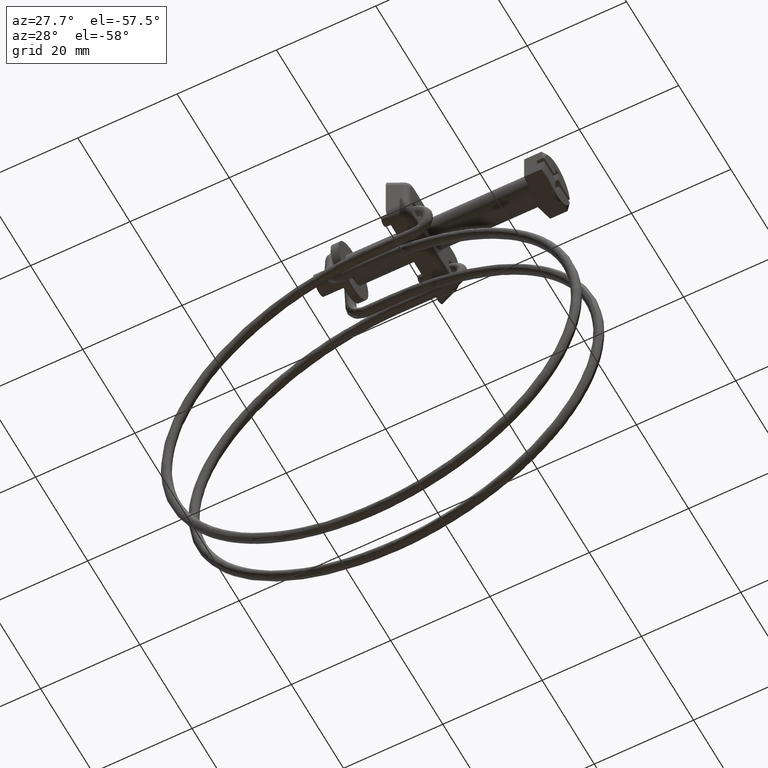
[diagram: clean part render]
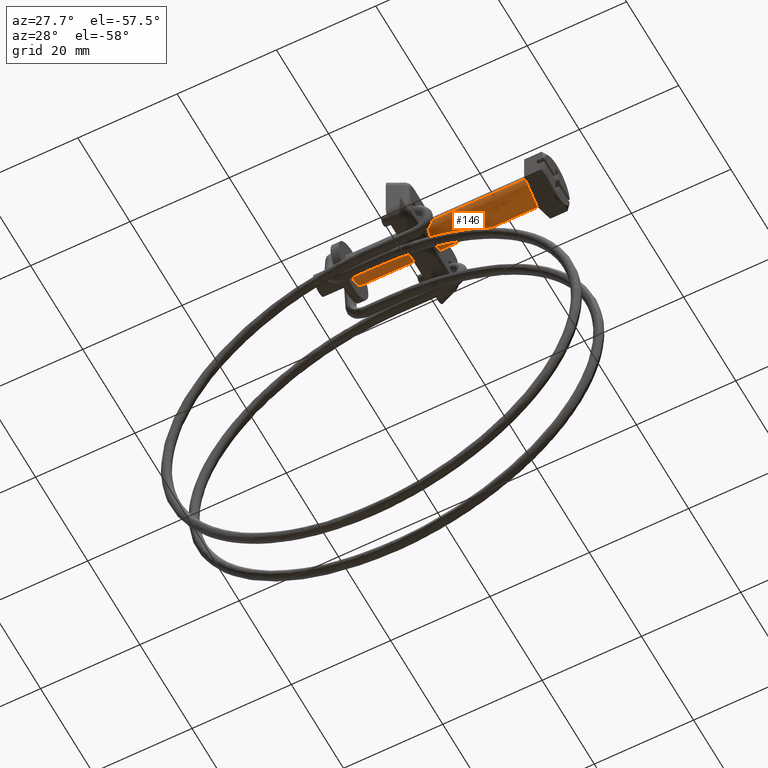
[diagram: same view with one face highlighted and labeled with its STEP entity id]
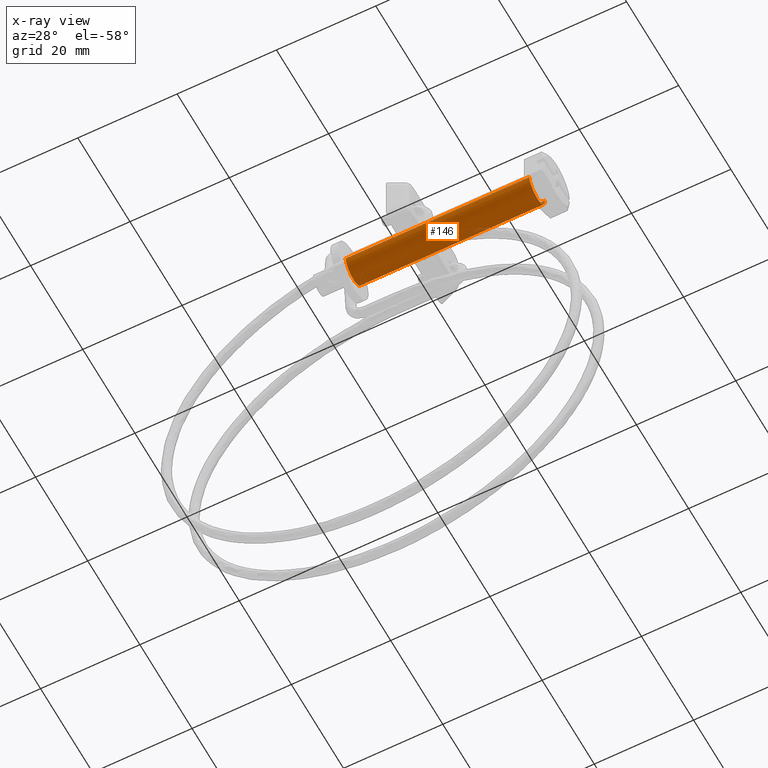
[diagram: x-ray of the same camera — body ghosted, the highlighted face saturated]
A machine part, auxiliary view. The second image highlights one B-rep face of the part: STEP entity #146.
The next image is the same camera in x-ray: the body ghosted, the highlighted face saturated — about 2% of this face is hidden behind the body in this view.
In plain terms, the highlighted face is a freeform B-spline surface patch.
Its self-contained STEP definition (entity closure, byte-faithful):
#44=CARTESIAN_POINT('',(0.925000000000001,2.979028579091114,0.354102703970289));
#45=CARTESIAN_POINT('',(0.925000000000001,2.989162846345932,0.268844185913943));
#46=CARTESIAN_POINT('',(0.925000000000001,2.994404395265715,0.183145618604578));
#47=CARTESIAN_POINT('',(0.925000000000001,3.177550013870294,-2.811258776661137));
#48=CARTESIAN_POINT('',(0.925000000000001,0.183145618604578,-2.994404395265715));
#49=CARTESIAN_POINT('',(0.925000000000001,-2.811258776661137,-3.177550013870294));
#50=CARTESIAN_POINT('',(0.925000000000001,-2.994404395265715,-0.183145618604578));
#51=CARTESIAN_POINT('',(-37.948125000000012,2.979028579091114,0.354102703970289));
#52=CARTESIAN_POINT('',(-37.948125000000005,2.989162846345932,0.268844185913943));
#53=CARTESIAN_POINT('',(-37.948125000000012,2.994404395265715,0.183145618604578));
#54=CARTESIAN_POINT('',(-37.948125000000005,3.177550013870294,-2.811258776661137));
#55=CARTESIAN_POINT('',(-37.948125000000012,0.183145618604578,-2.994404395265715));
#56=CARTESIAN_POINT('',(-37.948125000000005,-2.811258776661137,-3.177550013870294));
#57=CARTESIAN_POINT('',(-37.948125000000012,-2.994404395265715,-0.183145618604578));
#65=(BOUNDED_SURFACE()B_SPLINE_SURFACE(2,1,((#44,#51),(#45,#52),(#46,#53),(#47,#54),(#48,#55),(#49,#56),(#50,#57)),.UNSPECIFIED.,.F.,.F.,.U.)B_SPLINE_SURFACE_WITH_KNOTS((3,2,2,3),(2,2),(0.0,0.198822509939094,5.169385258416424,10.139948006893750),(0.0,38.873125000000023),.UNSPECIFIED.)GEOMETRIC_REPRESENTATION_ITEM()RATIONAL_B_SPLINE_SURFACE(((0.977505800795127,0.977505800795127),(0.988284271247462,0.988284271247462),(1.0,1.0),(0.707106781186548,0.707106781186548),(1.0,1.0),(0.707106781186548,0.707106781186548),(1.0,1.0)))REPRESENTATION_ITEM('')SURFACE());
#66=CARTESIAN_POINT('',(1.362926E-015,2.979028579066652,0.354102704176082));
#67=VERTEX_POINT('',#66);
#68=CARTESIAN_POINT('',(0.0,0.0,-3.000000000000115));
#69=VERTEX_POINT('',#68);
#70=CARTESIAN_POINT('',(1.362926E-015,2.979028579066652,0.354102704176082));
#71=CARTESIAN_POINT('',(0.0,3.000000000000115,0.177672359163706));
#72=CARTESIAN_POINT('',(0.0,3.000000000000115,0.0));
#73=CARTESIAN_POINT('',(0.0,3.000000000000114,-3.000000000000114));
#74=CARTESIAN_POINT('',(0.0,0.0,-3.000000000000115));
#82=(BOUNDED_CURVE()B_SPLINE_CURVE(2,(#70,#71,#72,#73,#74),.UNSPECIFIED.,.F.,.U.)B_SPLINE_CURVE_WITH_KNOTS((3,2,3),(0.729562473492295,0.750000000000000,1.0),.UNSPECIFIED.)CURVE()GEOMETRIC_REPRESENTATION_ITEM()RATIONAL_B_SPLINE_CURVE((0.956026754142119,0.976055948306292,1.0,0.707106781186547,1.0))REPRESENTATION_ITEM(''));
#83=EDGE_CURVE('',#67,#69,#82,.T.);
#84=ORIENTED_EDGE('',*,*,#83,.T.);
#85=CARTESIAN_POINT('',(-7.771561E-016,-2.994404382378159,-0.183145829314024));
#86=VERTEX_POINT('',#85);
#87=CARTESIAN_POINT('',(0.0,0.0,-3.000000000000115));
#88=CARTESIAN_POINT('',(0.0,-2.822117802802912,-3.000000000000116));
#89=CARTESIAN_POINT('',(-7.771561E-016,-2.994404382378158,-0.183145829314024));
#97=(BOUNDED_CURVE()B_SPLINE_CURVE(2,(#87,#88,#89),.UNSPECIFIED.,.F.,.U.)B_SPLINE_CURVE_WITH_KNOTS((3,3),(0.0,0.239332937958516),.UNSPECIFIED.)CURVE()GEOMETRIC_REPRESENTATION_ITEM()RATIONAL_B_SPLINE_CURVE((1.0,0.719604021732999,0.976071989629147))REPRESENTATION_ITEM(''));
#98=EDGE_CURVE('',#69,#86,#97,.T.);
#99=ORIENTED_EDGE('',*,*,#98,.T.);
#100=CARTESIAN_POINT('',(-37.0,-2.994404382378159,-0.183145829314024));
#101=VERTEX_POINT('',#100);
#102=CARTESIAN_POINT('',(-7.771561E-016,-2.994404382378159,-0.183145829314024));
#103=CARTESIAN_POINT('',(-37.0,-2.994404382378159,-0.183145829314024));
#104=QUASI_UNIFORM_CURVE('',1,(#102,#103),.UNSPECIFIED.,.F.,.U.);
#105=EDGE_CURVE('',#86,#101,#104,.T.);
#106=ORIENTED_EDGE('',*,*,#105,.T.);
#107=CARTESIAN_POINT('',(-37.0,0.0,-3.000000000000115));
#108=VERTEX_POINT('',#107);
#109=CARTESIAN_POINT('',(-37.0,0.0,-3.000000000000115));
#110=CARTESIAN_POINT('',(-37.000000000000007,-2.822117802802912,-3.000000000000114));
#111=CARTESIAN_POINT('',(-37.0,-2.994404382378158,-0.183145829314024));
#119=(BOUNDED_CURVE()B_SPLINE_CURVE(2,(#109,#110,#111),.UNSPECIFIED.,.F.,.U.)B_SPLINE_CURVE_WITH_KNOTS((3,3),(0.500000000000000,0.739332937958516),.UNSPECIFIED.)CURVE()GEOMETRIC_REPRESENTATION_ITEM()RATIONAL_B_SPLINE_CURVE((1.0,0.719604021732999,0.976071989629147))REPRESENTATION_ITEM(''));
#120=EDGE_CURVE('',#108,#101,#119,.T.);
#121=ORIENTED_EDGE('',*,*,#120,.F.);
#122=CARTESIAN_POINT('',(-37.0,2.979028579066652,0.354102704176081));
#123=VERTEX_POINT('',#122);
#124=CARTESIAN_POINT('',(-37.0,2.979028579066652,0.354102704176081));
#125=CARTESIAN_POINT('',(-37.0,3.000000000000115,0.177672359163705));
#126=CARTESIAN_POINT('',(-37.0,3.000000000000115,0.0));
#127=CARTESIAN_POINT('',(-37.000000000000007,3.000000000000114,-3.000000000000114));
#128=CARTESIAN_POINT('',(-37.0,0.0,-3.000000000000115));
#136=(BOUNDED_CURVE()B_SPLINE_CURVE(2,(#124,#125,#126,#127,#128),.UNSPECIFIED.,.F.,.U.)B_SPLINE_CURVE_WITH_KNOTS((3,2,3),(0.229562473492295,0.250000000000000,0.500000000000000),.UNSPECIFIED.)CURVE()GEOMETRIC_REPRESENTATION_ITEM()RATIONAL_B_SPLINE_CURVE((0.956026754142119,0.976055948306292,1.0,0.707106781186547,1.0))REPRESENTATION_ITEM(''));
#137=EDGE_CURVE('',#123,#108,#136,.T.);
#138=ORIENTED_EDGE('',*,*,#137,.F.);
#139=CARTESIAN_POINT('',(1.362926E-015,2.979028579066652,0.354102704176082));
#140=CARTESIAN_POINT('',(-37.0,2.979028579066652,0.354102704176081));
#141=QUASI_UNIFORM_CURVE('',1,(#139,#140),.UNSPECIFIED.,.F.,.U.);
#142=EDGE_CURVE('',#67,#123,#141,.T.);
#143=ORIENTED_EDGE('',*,*,#142,.F.);
#144=EDGE_LOOP('',(#84,#99,#106,#121,#138,#143));
#145=FACE_OUTER_BOUND('',#144,.T.);
#146=ADVANCED_FACE('',(#145),#65,.T.);